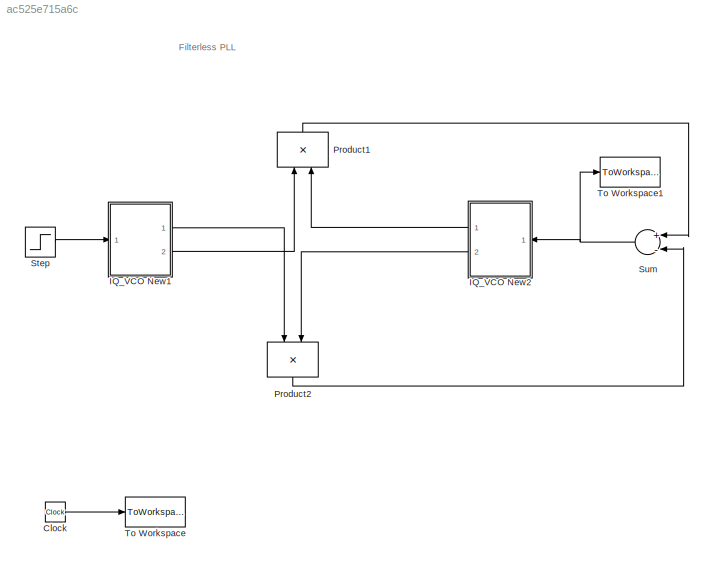
MODEL slx_ac525e715a6c
KIND model
BLOCK [Clock] Clock
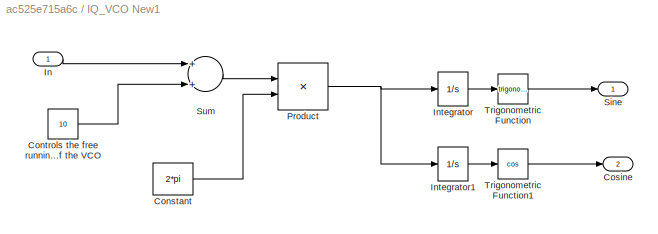
BLOCK [SubSystem] IQ_VCO New1
  Ports = [1, 2]
  RequestExecContextInheritance = off
BLOCK [Constant] IQ_VCO New1/Constant
  Value = 2*pi
BLOCK [Constant] IQ_VCO New1/Controls the free running frequency (Hz) of the VCO 
  Value = 10
BLOCK [Outport] IQ_VCO New1/Cosine
  IconDisplay = Port number
  Port = 2
BLOCK [Inport] IQ_VCO New1/In
  IconDisplay = Port number
BLOCK [Integrator] IQ_VCO New1/Integrator
  InitialCondition = IC_1
  Ports = [1, 1]
BLOCK [Integrator] IQ_VCO New1/Integrator1
  InitialCondition = IC_2
  Ports = [1, 1]
BLOCK [Product] IQ_VCO New1/Product
  InputSameDT = off
  Ports = [2, 1]
  RndMeth = Floor
BLOCK [Outport] IQ_VCO New1/Sine
  IconDisplay = Port number
BLOCK [Sum] IQ_VCO New1/Sum
  InputSameDT = off
  OutDataTypeStr = Inherit: Inherit via internal rule
  Ports = [2, 1]
BLOCK [Trigonometry] IQ_VCO New1/Trigonometric Function
  Ports = [1, 1]
BLOCK [Trigonometry] IQ_VCO New1/Trigonometric Function1
  Operator = cos
  Ports = [1, 1]
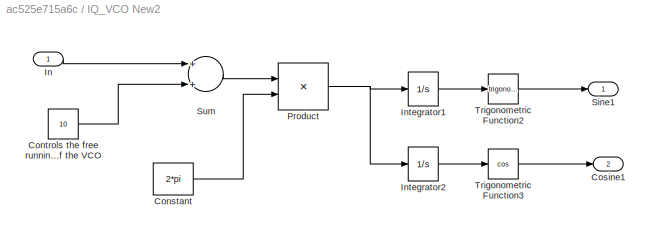
BLOCK [SubSystem] IQ_VCO New2
  Ports = [1, 2]
  RequestExecContextInheritance = off
BLOCK [Constant] IQ_VCO New2/Constant
  Value = 2*pi
BLOCK [Constant] IQ_VCO New2/Controls the free running frequency (Hz) of the VCO 
  Value = 10
BLOCK [Outport] IQ_VCO New2/Cosine1
  IconDisplay = Port number
  Port = 2
BLOCK [Inport] IQ_VCO New2/In
  IconDisplay = Port number
BLOCK [Integrator] IQ_VCO New2/Integrator1
  InitialCondition = IC_1
  Ports = [1, 1]
BLOCK [Integrator] IQ_VCO New2/Integrator2
  InitialCondition = IC_2
  Ports = [1, 1]
BLOCK [Product] IQ_VCO New2/Product
  InputSameDT = off
  Ports = [2, 1]
  RndMeth = Floor
BLOCK [Outport] IQ_VCO New2/Sine1
  IconDisplay = Port number
BLOCK [Sum] IQ_VCO New2/Sum
  InputSameDT = off
  OutDataTypeStr = Inherit: Inherit via internal rule
  Ports = [2, 1]
BLOCK [Trigonometry] IQ_VCO New2/Trigonometric Function2
  Ports = [1, 1]
BLOCK [Trigonometry] IQ_VCO New2/Trigonometric Function3
  Operator = cos
  Ports = [1, 1]
BLOCK [Product] Product1
  InputSameDT = off
  Ports = [2, 1]
  RndMeth = Floor
BLOCK [Product] Product2
  InputSameDT = off
  Ports = [2, 1]
  RndMeth = Floor
BLOCK [Step] Step
  After = Step_size
  SampleTime = 0
  Time = 0
BLOCK [Sum] Sum
  InputSameDT = off
  Inputs = +-
  OutDataTypeStr = Inherit: Inherit via internal rule
  Ports = [2, 1]
BLOCK [ToWorkspace] To Workspace
  MaxDataPoints = inf
  Ports = [1]
  SampleTime = -1
  VariableName = in
BLOCK [ToWorkspace] To Workspace1
  MaxDataPoints = inf
  Ports = [1]
  SampleTime = -1
  VariableName = out
ANNOTATION (root): Filterless PLL
LINE Clock:1 -> To Workspace:1
LINE IQ_VCO New1/Constant:1 -> IQ_VCO New1/Product:2
LINE IQ_VCO New1/Controls the free running frequency (Hz) of the VCO :1 -> IQ_VCO New1/Sum:2
LINE IQ_VCO New1/In:1 -> IQ_VCO New1/Sum:1
LINE IQ_VCO New1/Integrator1:1 -> IQ_VCO New1/Trigonometric Function1:1
LINE IQ_VCO New1/Integrator:1 -> IQ_VCO New1/Trigonometric Function:1
NET IQ_VCO New1/Product:1 -> IQ_VCO New1/Integrator1:1, IQ_VCO New1/Integrator:1
LINE IQ_VCO New1/Sum:1 -> IQ_VCO New1/Product:1
LINE IQ_VCO New1/Trigonometric Function1:1 -> IQ_VCO New1/Cosine:1
LINE IQ_VCO New1/Trigonometric Function:1 -> IQ_VCO New1/Sine:1
LINE IQ_VCO New1:1 -> Product2:1
LINE IQ_VCO New1:2 -> Product1:1
LINE IQ_VCO New2/Constant:1 -> IQ_VCO New2/Product:2
LINE IQ_VCO New2/Controls the free running frequency (Hz) of the VCO :1 -> IQ_VCO New2/Sum:2
LINE IQ_VCO New2/In:1 -> IQ_VCO New2/Sum:1
LINE IQ_VCO New2/Integrator1:1 -> IQ_VCO New2/Trigonometric Function2:1
LINE IQ_VCO New2/Integrator2:1 -> IQ_VCO New2/Trigonometric Function3:1
NET IQ_VCO New2/Product:1 -> IQ_VCO New2/Integrator1:1, IQ_VCO New2/Integrator2:1
LINE IQ_VCO New2/Sum:1 -> IQ_VCO New2/Product:1
LINE IQ_VCO New2/Trigonometric Function2:1 -> IQ_VCO New2/Sine1:1
LINE IQ_VCO New2/Trigonometric Function3:1 -> IQ_VCO New2/Cosine1:1
LINE IQ_VCO New2:1 -> Product1:2
LINE IQ_VCO New2:2 -> Product2:2
LINE Product1:1 -> Sum:1
LINE Product2:1 -> Sum:2
LINE Step:1 -> IQ_VCO New1:1
NET Sum:1 -> IQ_VCO New2:1, To Workspace1:1
note: NET lines group one-source signal fan-out (src -> all destinations, sorted); 1:1 wires keep LINE
